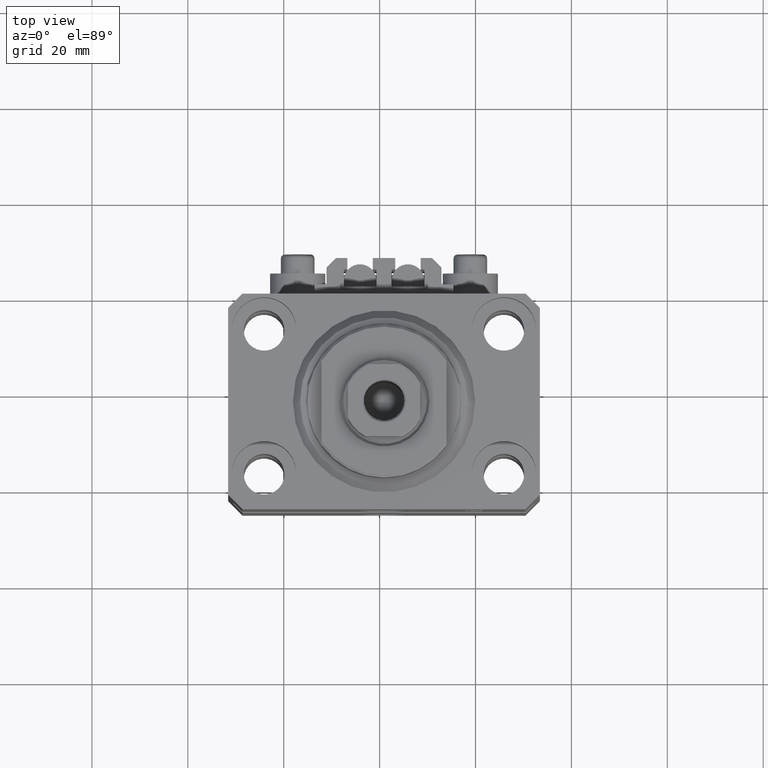
[diagram: clean part render]
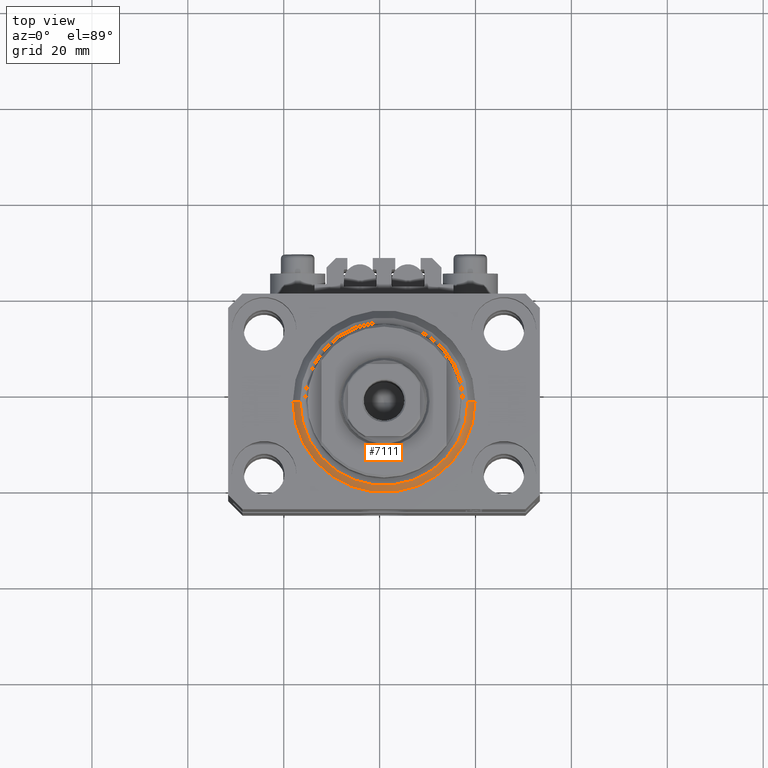
[diagram: same view with one face highlighted and labeled with its STEP entity id]
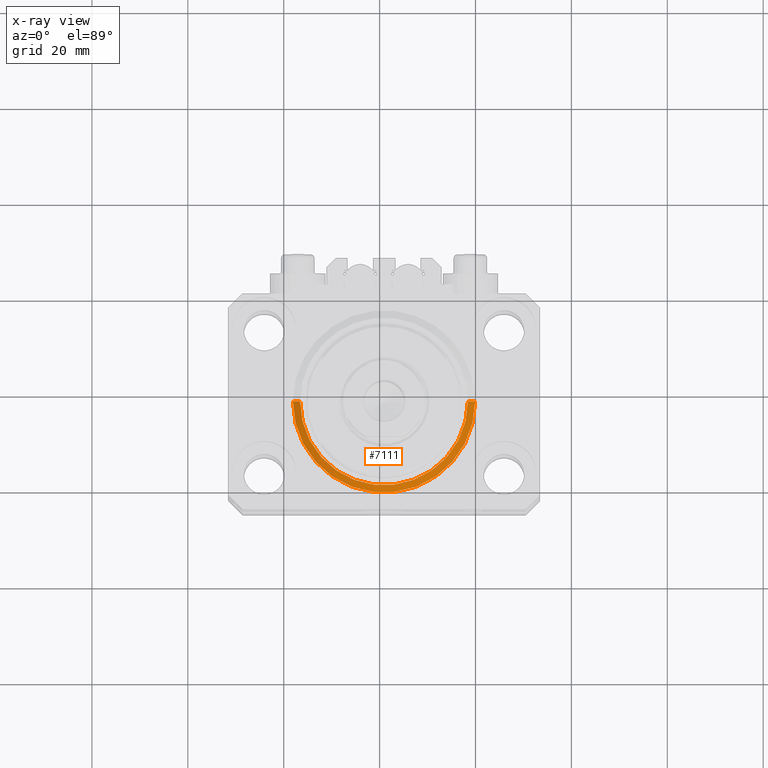
[diagram: x-ray of the same camera — body ghosted, the highlighted face saturated]
A machine part, top view. The second image highlights one B-rep face of the part: STEP entity #7111.
The next image is the same camera in x-ray: the body ghosted, the highlighted face saturated — about 0% of this face is hidden behind the body in this view.
In plain terms, the highlighted conical surface has half-angle 45 deg.
Its self-contained STEP definition (entity closure, byte-faithful):
#917 = CARTESIAN_POINT ( 'NONE',  ( 17.49999999999999289, 0.000000000000000000, 0.000000000000000000 ) ) ;
#5354 = VERTEX_POINT ( 'NONE', #30336 ) ;
#5955 = ORIENTED_EDGE ( 'NONE', *, *, #30059, .F. ) ;
#6187 = EDGE_LOOP ( 'NONE', ( #42383, #9102, #37995, #5955 ) ) ;
#6930 = DIRECTION ( 'NONE',  ( 1.000000000000000000, 0.000000000000000000, 0.000000000000000000 ) ) ;
#7111 = ADVANCED_FACE ( 'NONE', ( #41099 ), #14843, .T. ) ;
#7602 = CARTESIAN_POINT ( 'NONE',  ( 0.000000000000000000, 0.000000000000000000, 1.500000000000004885 ) ) ;
#7750 = EDGE_CURVE ( 'NONE', #20855, #25338, #15893, .T. ) ;
#9102 = ORIENTED_EDGE ( 'NONE', *, *, #19528, .F. ) ;
#11287 = CARTESIAN_POINT ( 'NONE',  ( -19.00000000000000000, 0.000000000000000000, 1.500000000000004885 ) ) ;
#14843 = CONICAL_SURFACE ( 'NONE', #38116, 19.00000000000000000, 0.7853981633974492782 ) ;
#15893 = LINE ( 'NONE', #24133, #45006 ) ;
#19528 = EDGE_CURVE ( 'NONE', #20855, #5354, #41156, .T. ) ;
#20855 = VERTEX_POINT ( 'NONE', #917 ) ;
#21155 = VERTEX_POINT ( 'NONE', #11287 ) ;
#21182 = CARTESIAN_POINT ( 'NONE',  ( 19.00000000000000000, 2.326828918379970970E-15, 1.500000000000004885 ) ) ;
#21764 = AXIS2_PLACEMENT_3D ( 'NONE', #25372, #40186, #6930 ) ;
#24133 = CARTESIAN_POINT ( 'NONE',  ( 19.00000000000000000, 0.000000000000000000, 1.500000000000004885 ) ) ;
#25338 = VERTEX_POINT ( 'NONE', #21182 ) ;
#25372 = CARTESIAN_POINT ( 'NONE',  ( 0.000000000000000000, 0.000000000000000000, 0.000000000000000000 ) ) ;
#28204 = AXIS2_PLACEMENT_3D ( 'NONE', #31436, #45760, #34824 ) ;
#30059 = EDGE_CURVE ( 'NONE', #21155, #25338, #37549, .T. ) ;
#30336 = CARTESIAN_POINT ( 'NONE',  ( -17.49999999999999289, 2.234980408443919215E-15, 0.000000000000000000 ) ) ;
#30720 = DIRECTION ( 'NONE',  ( 0.7071067811865483499, 0.000000000000000000, 0.7071067811865467956 ) ) ;
#31436 = CARTESIAN_POINT ( 'NONE',  ( 0.000000000000000000, 0.000000000000000000, 1.500000000000004885 ) ) ;
#31887 = CARTESIAN_POINT ( 'NONE',  ( -19.00000000000000000, 2.326828918379970970E-15, 1.500000000000004885 ) ) ;
#34824 = DIRECTION ( 'NONE',  ( 1.000000000000000000, 0.000000000000000000, 0.000000000000000000 ) ) ;
#37549 = CIRCLE ( 'NONE', #28204, 19.00000000000000000 ) ;
#37995 = ORIENTED_EDGE ( 'NONE', *, *, #7750, .T. ) ;
#38116 = AXIS2_PLACEMENT_3D ( 'NONE', #7602, #44510, #41348 ) ;
#38785 = VECTOR ( 'NONE', #39658, 1000.000000000000000 ) ;
#39658 = DIRECTION ( 'NONE',  ( -0.7071067811865483499, 8.659560562354943952E-17, 0.7071067811865467956 ) ) ;
#40186 = DIRECTION ( 'NONE',  ( -0.000000000000000000, -0.000000000000000000, -1.000000000000000000 ) ) ;
#41099 = FACE_OUTER_BOUND ( 'NONE', #6187, .T. ) ;
#41156 = CIRCLE ( 'NONE', #21764, 17.49999999999999289 ) ;
#41348 = DIRECTION ( 'NONE',  ( 1.000000000000000000, 0.000000000000000000, 0.000000000000000000 ) ) ;
#42383 = ORIENTED_EDGE ( 'NONE', *, *, #46822, .F. ) ;
#43056 = LINE ( 'NONE', #31887, #38785 ) ;
#44510 = DIRECTION ( 'NONE',  ( -0.000000000000000000, -0.000000000000000000, 1.000000000000000000 ) ) ;
#45006 = VECTOR ( 'NONE', #30720, 1000.000000000000000 ) ;
#45760 = DIRECTION ( 'NONE',  ( -0.000000000000000000, -0.000000000000000000, 1.000000000000000000 ) ) ;
#46822 = EDGE_CURVE ( 'NONE', #5354, #21155, #43056, .T. ) ;